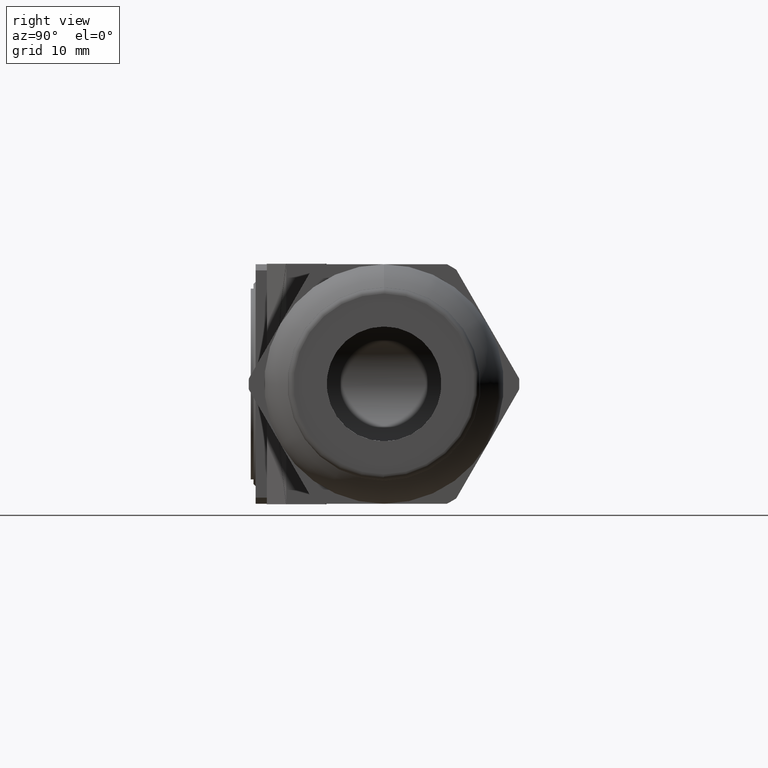
[diagram: clean part render]
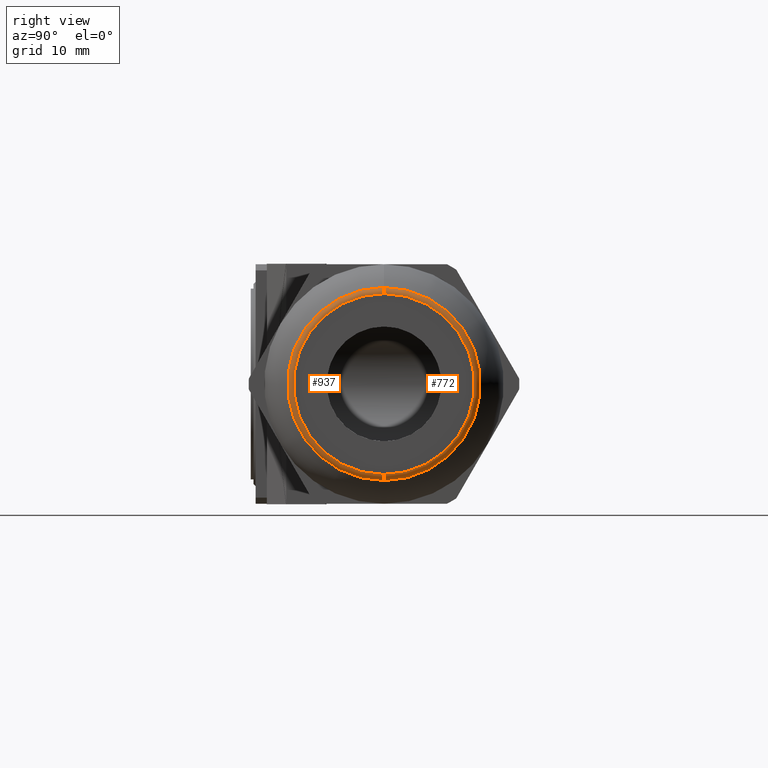
[diagram: same view with one multi-face feature highlighted, each face labeled with its STEP entity id]
A machine part, right view. The highlighted faces form ONE feature: a constant-radius fillet chain: 2 tangent blend faces with common blend radius 0.635 mm. The faces share edges in the B-rep.
Their STEP definitions:
[1] entity #772 (Torus):
#512 = ORIENTED_EDGE ( 'NONE', *, *, #981, .F. ) ;
#747 = VERTEX_POINT ( 'NONE', #2990 ) ;
#750 = EDGE_CURVE ( 'NONE', #751, #754, #2987, .T. ) ;
#751 = VERTEX_POINT ( 'NONE', #2954 ) ;
#754 = VERTEX_POINT ( 'NONE', #2953 ) ;
#755 = ORIENTED_EDGE ( 'NONE', *, *, #756, .T. ) ;
#756 = EDGE_CURVE ( 'NONE', #754, #747, #2950, .T. ) ;
#772 = ADVANCED_FACE ( 'NONE', ( #3177 ), #3176, .T. ) ;
#773 = EDGE_LOOP ( 'NONE', ( #774, #755, #512, #784 ) ) ;
#774 = ORIENTED_EDGE ( 'NONE', *, *, #750, .T. ) ;
#784 = ORIENTED_EDGE ( 'NONE', *, *, #900, .F. ) ;
#805 = VERTEX_POINT ( 'NONE', #3342 ) ;
#900 = EDGE_CURVE ( 'NONE', #751, #805, #3559, .T. ) ;
#981 = EDGE_CURVE ( 'NONE', #805, #747, #3372, .T. ) ;
#2143 = DIRECTION ( 'NONE',  ( 0.0000000000000000000, -1.224646799147352700E-016, 1.000000000000000000 ) ) ;
#2148 = DIRECTION ( 'NONE',  ( 0.0000000000000000000, 1.000000000000000000, 1.224646799147353200E-016 ) ) ;
#2149 = CARTESIAN_POINT ( 'NONE',  ( 1.235355510000000200, 4.531193156845207300E-017, -0.3700000000000000000 ) ) ;
#2949 = AXIS2_PLACEMENT_3D ( 'NONE', #2149, #2148, #2143 ) ;
#2950 = CIRCLE ( 'NONE', #2949, 0.02499999999999980000 ) ;
#2953 = CARTESIAN_POINT ( 'NONE',  ( 1.260355510000000100, 4.684274006738625500E-017, -0.3700000000000000000 ) ) ;
#2954 = CARTESIAN_POINT ( 'NONE',  ( 1.260355510000000100, 0.0000000000000000000, 0.3700000000000000000 ) ) ;
#2955 = DIRECTION ( 'NONE',  ( 0.0000000000000000000, 0.0000000000000000000, 1.000000000000000000 ) ) ;
#2956 = DIRECTION ( 'NONE',  ( -1.000000000000000000, 0.0000000000000000000, 0.0000000000000000000 ) ) ;
#2957 = CARTESIAN_POINT ( 'NONE',  ( 1.260355510000000100, 0.0000000000000000000, 0.0000000000000000000 ) ) ;
#2958 = AXIS2_PLACEMENT_3D ( 'NONE', #2957, #2956, #2955 ) ;
#2987 = CIRCLE ( 'NONE', #2958, 0.3700000000000000000 ) ;
#2990 = CARTESIAN_POINT ( 'NONE',  ( 1.235355510000000200, 4.837354856632045600E-017, -0.3950000000000000200 ) ) ;
#3171 = DIRECTION ( 'NONE',  ( 0.0000000000000000000, 0.0000000000000000000, 1.000000000000000000 ) ) ;
#3172 = DIRECTION ( 'NONE',  ( -1.000000000000000000, 0.0000000000000000000, 0.0000000000000000000 ) ) ;
#3173 = AXIS2_PLACEMENT_3D ( 'NONE', #3175, #3172, #3171 ) ;
#3175 = CARTESIAN_POINT ( 'NONE',  ( 1.235355510000000200, 0.0000000000000000000, 0.0000000000000000000 ) ) ;
#3176 = TOROIDAL_SURFACE ( 'NONE', #3173, 0.3700000000000000000, 0.02499999999999980000 ) ;
#3177 = FACE_OUTER_BOUND ( 'NONE', #773, .T. ) ;
#3342 = CARTESIAN_POINT ( 'NONE',  ( 1.235355510000000200, 0.0000000000000000000, 0.3950000000000000200 ) ) ;
#3368 = DIRECTION ( 'NONE',  ( 0.0000000000000000000, 0.0000000000000000000, 1.000000000000000000 ) ) ;
#3369 = DIRECTION ( 'NONE',  ( -1.000000000000000000, 0.0000000000000000000, 0.0000000000000000000 ) ) ;
#3370 = CARTESIAN_POINT ( 'NONE',  ( 1.235355510000000200, 0.0000000000000000000, 0.0000000000000000000 ) ) ;
#3371 = AXIS2_PLACEMENT_3D ( 'NONE', #3370, #3369, #3368 ) ;
#3372 = CIRCLE ( 'NONE', #3371, 0.3950000000000000200 ) ;
#3393 = CARTESIAN_POINT ( 'NONE',  ( 1.235355510000000200, 0.0000000000000000000, 0.3700000000000000000 ) ) ;
#3556 = DIRECTION ( 'NONE',  ( 0.0000000000000000000, 0.0000000000000000000, -1.000000000000000000 ) ) ;
#3557 = DIRECTION ( 'NONE',  ( 0.0000000000000000000, -1.000000000000000000, 0.0000000000000000000 ) ) ;
#3558 = AXIS2_PLACEMENT_3D ( 'NONE', #3393, #3557, #3556 ) ;
#3559 = CIRCLE ( 'NONE', #3558, 0.02499999999999980000 ) ;
[2] entity #937 (Torus):
#747 = VERTEX_POINT ( 'NONE', #2990 ) ;
#751 = VERTEX_POINT ( 'NONE', #2954 ) ;
#754 = VERTEX_POINT ( 'NONE', #2953 ) ;
#756 = EDGE_CURVE ( 'NONE', #754, #747, #2950, .T. ) ;
#805 = VERTEX_POINT ( 'NONE', #3342 ) ;
#810 = ORIENTED_EDGE ( 'NONE', *, *, #934, .F. ) ;
#813 = ORIENTED_EDGE ( 'NONE', *, *, #900, .T. ) ;
#815 = EDGE_CURVE ( 'NONE', #754, #751, #3333, .T. ) ;
#900 = EDGE_CURVE ( 'NONE', #751, #805, #3559, .T. ) ;
#934 = EDGE_CURVE ( 'NONE', #747, #805, #3489, .T. ) ;
#937 = ADVANCED_FACE ( 'NONE', ( #3490 ), #3483, .T. ) ;
#978 = EDGE_LOOP ( 'NONE', ( #979, #980, #813, #810 ) ) ;
#979 = ORIENTED_EDGE ( 'NONE', *, *, #756, .F. ) ;
#980 = ORIENTED_EDGE ( 'NONE', *, *, #815, .T. ) ;
#2143 = DIRECTION ( 'NONE',  ( 0.0000000000000000000, -1.224646799147352700E-016, 1.000000000000000000 ) ) ;
#2148 = DIRECTION ( 'NONE',  ( 0.0000000000000000000, 1.000000000000000000, 1.224646799147353200E-016 ) ) ;
#2149 = CARTESIAN_POINT ( 'NONE',  ( 1.235355510000000200, 4.531193156845207300E-017, -0.3700000000000000000 ) ) ;
#2949 = AXIS2_PLACEMENT_3D ( 'NONE', #2149, #2148, #2143 ) ;
#2950 = CIRCLE ( 'NONE', #2949, 0.02499999999999980000 ) ;
#2953 = CARTESIAN_POINT ( 'NONE',  ( 1.260355510000000100, 4.684274006738625500E-017, -0.3700000000000000000 ) ) ;
#2954 = CARTESIAN_POINT ( 'NONE',  ( 1.260355510000000100, 0.0000000000000000000, 0.3700000000000000000 ) ) ;
#2990 = CARTESIAN_POINT ( 'NONE',  ( 1.235355510000000200, 4.837354856632045600E-017, -0.3950000000000000200 ) ) ;
#3333 = CIRCLE ( 'NONE', #3362, 0.3700000000000000000 ) ;
#3342 = CARTESIAN_POINT ( 'NONE',  ( 1.235355510000000200, 0.0000000000000000000, 0.3950000000000000200 ) ) ;
#3359 = DIRECTION ( 'NONE',  ( 0.0000000000000000000, 0.0000000000000000000, 1.000000000000000000 ) ) ;
#3360 = DIRECTION ( 'NONE',  ( -1.000000000000000000, 0.0000000000000000000, 0.0000000000000000000 ) ) ;
#3361 = CARTESIAN_POINT ( 'NONE',  ( 1.260355510000000100, 0.0000000000000000000, 0.0000000000000000000 ) ) ;
#3362 = AXIS2_PLACEMENT_3D ( 'NONE', #3361, #3360, #3359 ) ;
#3393 = CARTESIAN_POINT ( 'NONE',  ( 1.235355510000000200, 0.0000000000000000000, 0.3700000000000000000 ) ) ;
#3480 = DIRECTION ( 'NONE',  ( 0.0000000000000000000, 0.0000000000000000000, 1.000000000000000000 ) ) ;
#3481 = DIRECTION ( 'NONE',  ( -1.000000000000000000, 0.0000000000000000000, 0.0000000000000000000 ) ) ;
#3482 = AXIS2_PLACEMENT_3D ( 'NONE', #3484, #3481, #3480 ) ;
#3483 = TOROIDAL_SURFACE ( 'NONE', #3482, 0.3700000000000000000, 0.02499999999999980000 ) ;
#3484 = CARTESIAN_POINT ( 'NONE',  ( 1.235355510000000200, 0.0000000000000000000, 0.0000000000000000000 ) ) ;
#3485 = DIRECTION ( 'NONE',  ( 0.0000000000000000000, 0.0000000000000000000, 1.000000000000000000 ) ) ;
#3486 = DIRECTION ( 'NONE',  ( -1.000000000000000000, 0.0000000000000000000, 0.0000000000000000000 ) ) ;
#3487 = CARTESIAN_POINT ( 'NONE',  ( 1.235355510000000200, 0.0000000000000000000, 0.0000000000000000000 ) ) ;
#3488 = AXIS2_PLACEMENT_3D ( 'NONE', #3487, #3486, #3485 ) ;
#3489 = CIRCLE ( 'NONE', #3488, 0.3950000000000000200 ) ;
#3490 = FACE_OUTER_BOUND ( 'NONE', #978, .T. ) ;
#3556 = DIRECTION ( 'NONE',  ( 0.0000000000000000000, 0.0000000000000000000, -1.000000000000000000 ) ) ;
#3557 = DIRECTION ( 'NONE',  ( 0.0000000000000000000, -1.000000000000000000, 0.0000000000000000000 ) ) ;
#3558 = AXIS2_PLACEMENT_3D ( 'NONE', #3393, #3557, #3556 ) ;
#3559 = CIRCLE ( 'NONE', #3558, 0.02499999999999980000 ) ;